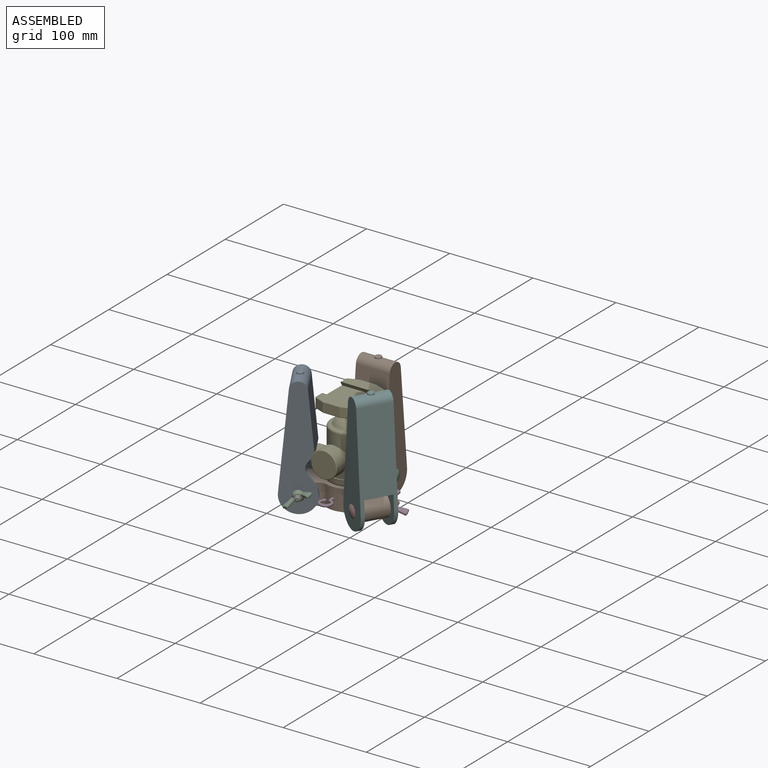
[diagram: assembled view]
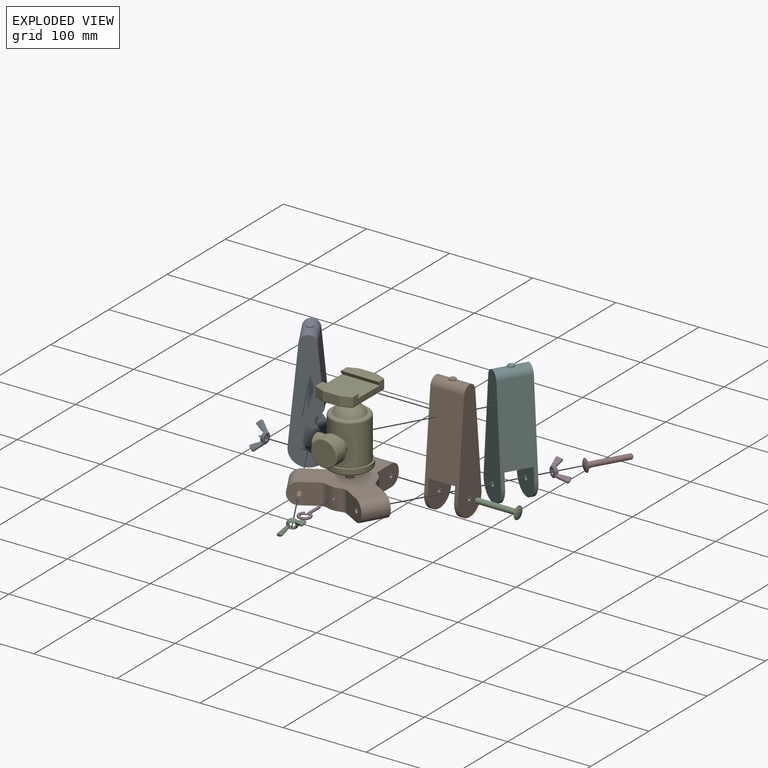
[diagram: exploded view]
GUIDED TOUR — MATED ASSEMBLY WITH SUBASSEMBLIES (Onshape document 450d4b0042331eae24bbd60c, AutoMate assembly 450d4b0042331eae24bbd60c_d984854fb3dad78ea3269862_093a6ce35e05ea192c00fd4e_default)

This assembly has 21 component occurrences arranged in 12 top-level units: 9 individual components plus 3 subassemblies (S0, S1, S2). The tour has two levels: first the top level, where each subassembly is treated as one rigid unit; then each subassembly is toured internally in its own section (nesting deeper than one subassembly level is flattened into its subassembly's section).

Components are labeled P0..P20 across the whole record; subassembly units are labeled S0..S2. A mate is a constraint between two units; its type names the relative motion it leaves free:
  FASTENED — locks the two components together rigidly (no relative motion),
  REVOLUTE — leaves rotation about the listed axis free (a hinge).
Axis/direction vectors are unit vectors and 'through' points are millimeter coordinates, both in the assembly's world frame.

TOP-LEVEL MATES (between units; each subassembly's internal mates are listed in its own section)
  1. FASTENED "Fastened 4": P10 <-> S0, direction (0.500, -0.866, 0.000) through (-52.70, -6.90, -12.70) mm
  2. REVOLUTE "Revolute 2": S1 <-> P16, axis (-1.000, 0.000, 0.000) through (15.88, 49.09, -12.70) mm
  3. FASTENED "Fastened 8": P3 <-> S1, direction (-1.000, 0.000, 0.000) through (20.38, 49.09, -12.70) mm
  4. REVOLUTE "Revolute 1": P7 <-> P16, axis (0.000, 0.000, -1.000) through (0.00, 0.00, 0.00) mm
  5. FASTENED "Fastened 2": P20 <-> P16, direction (0.000, 1.000, 0.000) through (0.00, -15.88, -12.70) mm
  6. REVOLUTE "Revolute 4": S0 <-> P16, axis (-0.500, 0.866, 0.000) through (-34.57, -38.29, -12.70) mm
  7. REVOLUTE "Revolute 3": S2 <-> P16, axis (-0.500, -0.866, 0.000) through (50.45, -10.79, -12.70) mm
  8. FASTENED "Fastened 6": P11 <-> S2, direction (0.500, 0.866, 0.000) through (32.32, -42.19, -12.70) mm
  9. FASTENED "Fastened 5": P6 <-> S2, direction (-0.500, -0.866, 0.000) through (52.70, -6.90, -12.70) mm
  10. FASTENED "Fastened 7": P12 <-> S1, direction (1.000, 0.000, 0.000) through (-20.37, 49.09, -12.70) mm
  11. FASTENED "Fastened 3": P19 <-> S0, direction (-0.500, 0.866, 0.000) through (-32.32, -42.19, -12.70) mm

TOP-LEVEL ASSEMBLY ORDER
  1. P16 — the base component [order heuristic]
  2. S0 — core [order heuristic]
  3. S2 — core [order heuristic]
  4. P3 — core [order heuristic]
  5. P6 — core [order heuristic]
  6. P10 — core [order heuristic]
  7. P11 — core [order heuristic]
  8. P19 — core [order heuristic]
  9. P7 [order verified]
  10. S1 [order verified]
  11. P12 [order verified]
  12. P20 [order verified]
Order-tag legend:
  [order verified] — this step's position reverses a verified removal order: the component was checked to insert without passing through the ones already placed.
  [order heuristic] — the first 8 components form the assembly's core: parts whose collision-free extraction could not be verified, listed in mate-graph order.

Of the 21 component occurrences, 4 carry the full construction recipe — the FeatureScript program that regenerates the part's solid from scratch; the rest are supplied as boundary geometry only. Each toured unit is shown spotlighted twice — assembled, then exploded with a leader line back to its socket (green = recipe-attached component, orange = geometry-only, blue = subassembly unit; the rest desaturated gray).
NOTE — document 2 of 2 of this assembly tour. The two overview renders and the header above are repeated from document 1; the component sections below continue where the previous document stopped.
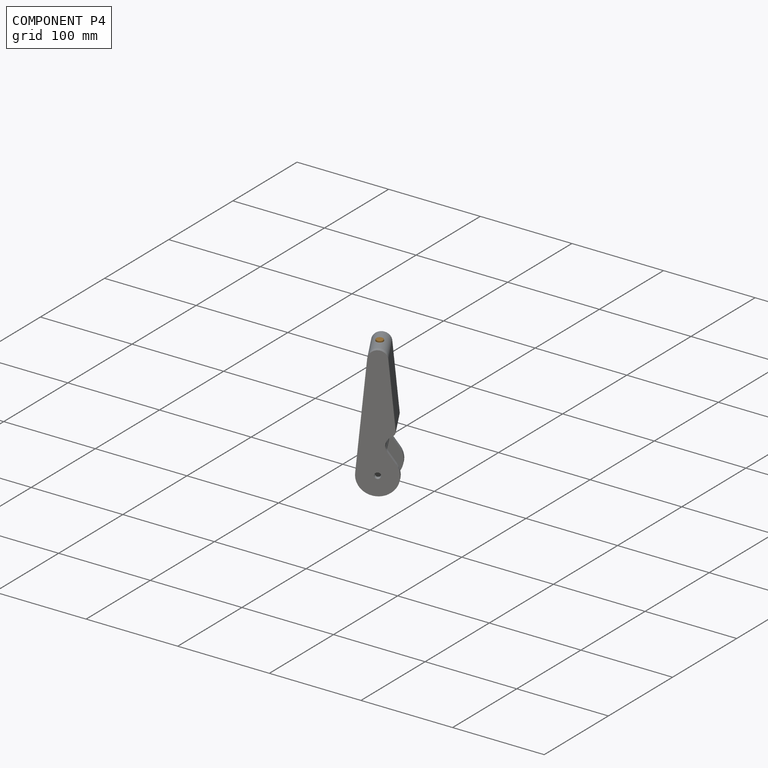
[diagram: component P4 — assembled]
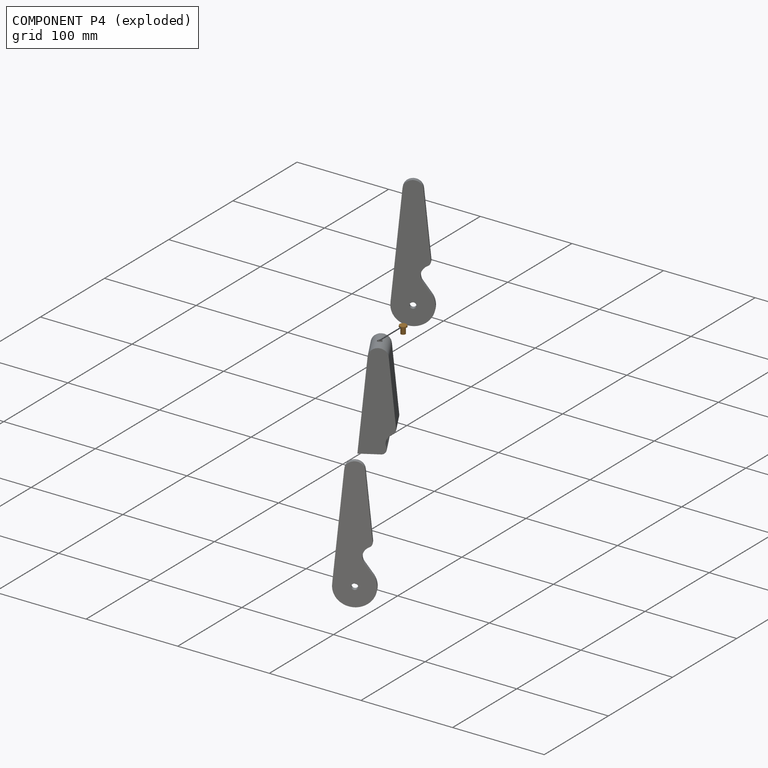
[diagram: component P4 — exploded]
COMPONENT P4 — geometry summary (no construction recipe available for this part):
  bounding box: 10.7 x 9.5 x 8.3 mm
  B-rep topology: 1 solid, 6 faces, 18 edges
  volume: 230 mm^3 (27% of its bounding box)
Held by: FASTENED mate "Fastened 3" to P1; FASTENED mate "Fastened 3" to P1.
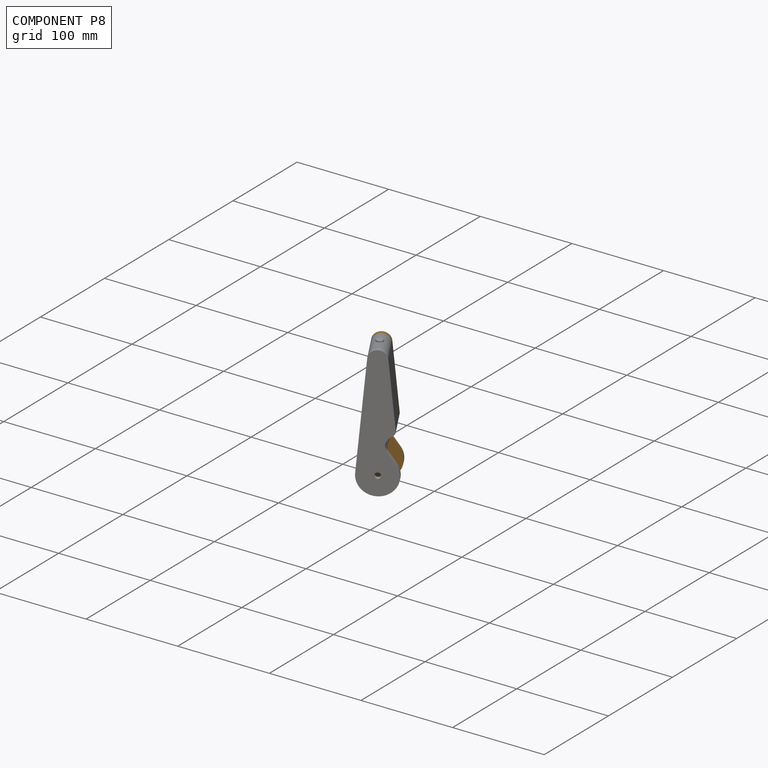
[diagram: component P8 — assembled]
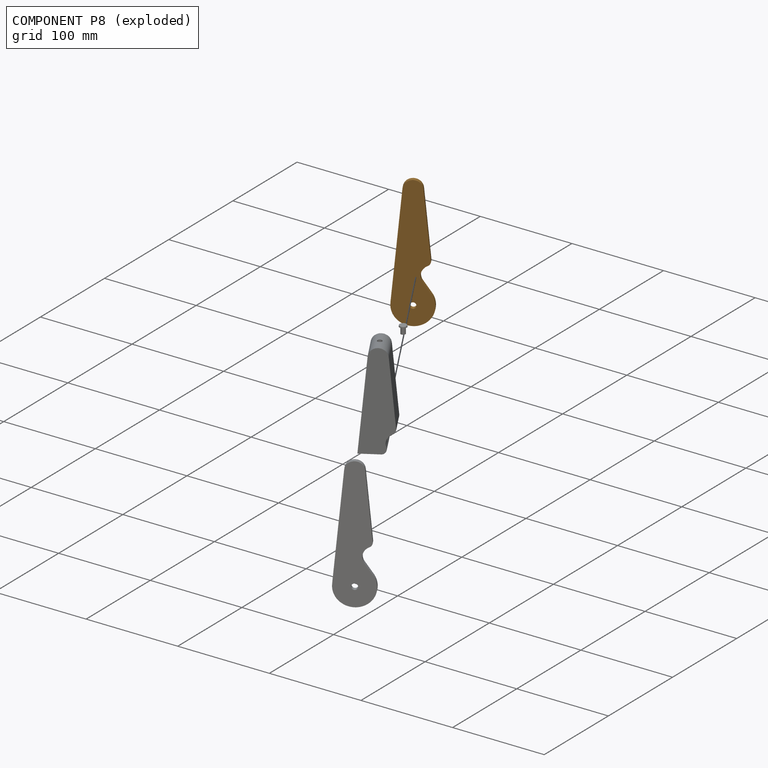
[diagram: component P8 — exploded]
COMPONENT P8 — geometry summary (no construction recipe available for this part):
  bounding box: 128.8 x 77.6 x 47.4 mm
  B-rep topology: 1 solid, 11 faces, 54 edges
  volume: 17788 mm^3 (4% of its bounding box)
Held by: FASTENED mate "Fastened 1" to P1; FASTENED mate "Fastened 1" to P1.
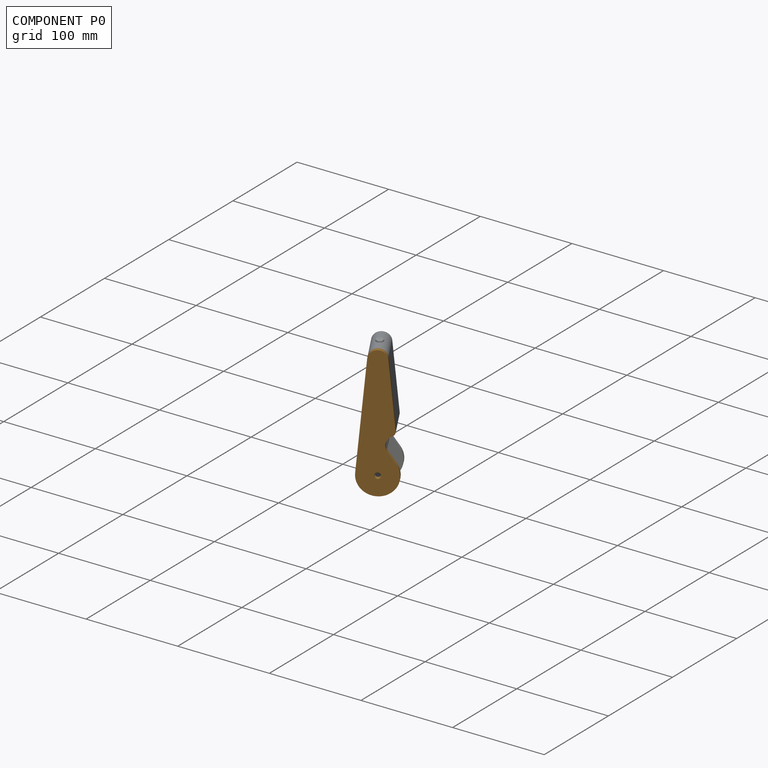
[diagram: component P0 — assembled]
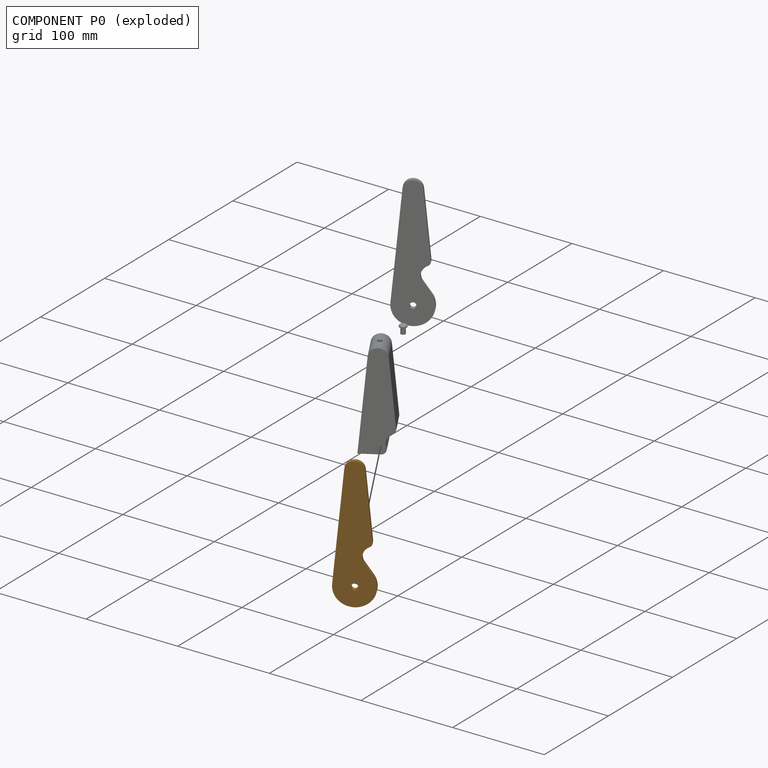
[diagram: component P0 — exploded]
COMPONENT P0 — geometry summary (no construction recipe available for this part):
  bounding box: 128.8 x 77.6 x 47.4 mm
  B-rep topology: 1 solid, 11 faces, 54 edges
  volume: 17788 mm^3 (4% of its bounding box)
Held by: FASTENED mate "Fastened 2" to P1; FASTENED mate "Fastened 2" to P1.
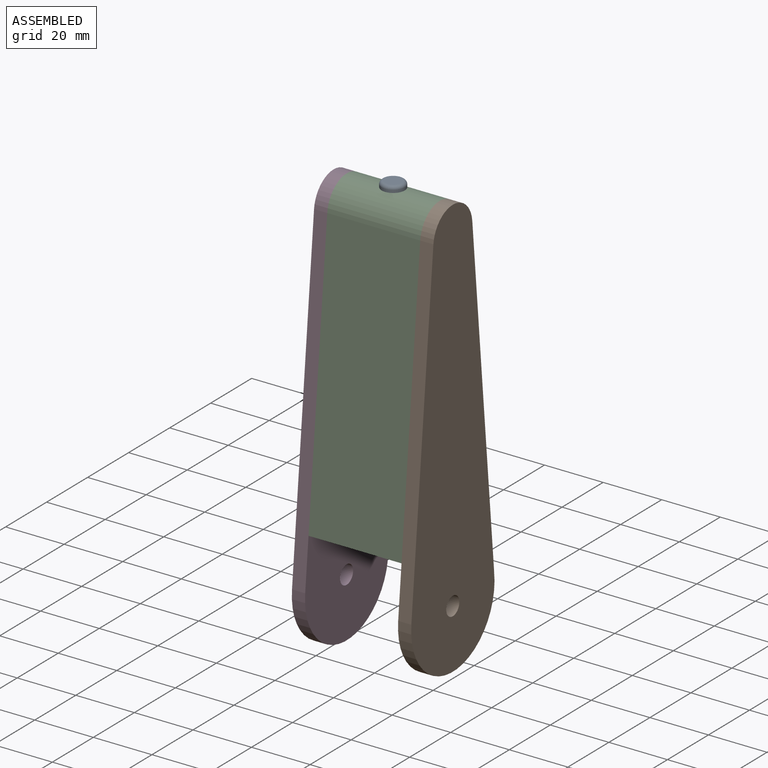
[diagram: subassembly S1 — assembled view]
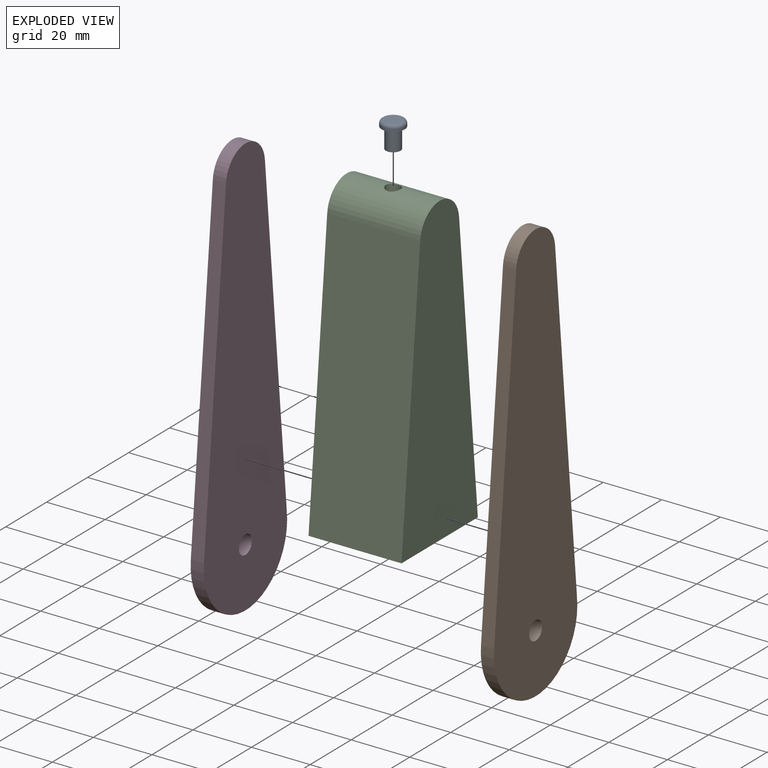
[diagram: subassembly S1 — exploded view]
SUBASSEMBLY S1 TOUR — 4 components, shown here in isolation at its own camera.

INTERNAL MATES
  1. FASTENED "Fastened 2": P5 <-> P13, direction (-1.000, 0.000, 0.000) through (15.88, 49.09, 101.60) mm
  2. FASTENED "Fastened 1": P14 <-> P13, direction (1.000, 0.000, 0.000) through (-15.87, 49.09, 101.60) mm
  3. FASTENED "Fastened 3": P2 <-> P13, direction (0.000, 0.000, -1.000) through (0.00, 49.09, 104.14) mm
  4. FASTENED "Fastened 1": P14 <-> P13, direction (1.000, 0.000, 0.000) through (-15.87, 49.09, 101.60) mm
  5. FASTENED "Fastened 3": P2 <-> P13, direction (0.000, 0.000, -1.000) through (0.00, 49.09, 104.14) mm
  6. FASTENED "Fastened 2": P5 <-> P13, direction (-1.000, 0.000, 0.000) through (15.88, 49.09, 101.60) mm

ASSEMBLY ORDER (within the subassembly)
  1. P13 — the base component [order verified]
  2. P2 [order verified]
  3. P5 [order verified]
  4. P14 [order verified]
Order-tag legend:
  [order verified] — this step's position reverses a verified removal order: the component was checked to insert without passing through the ones already placed.
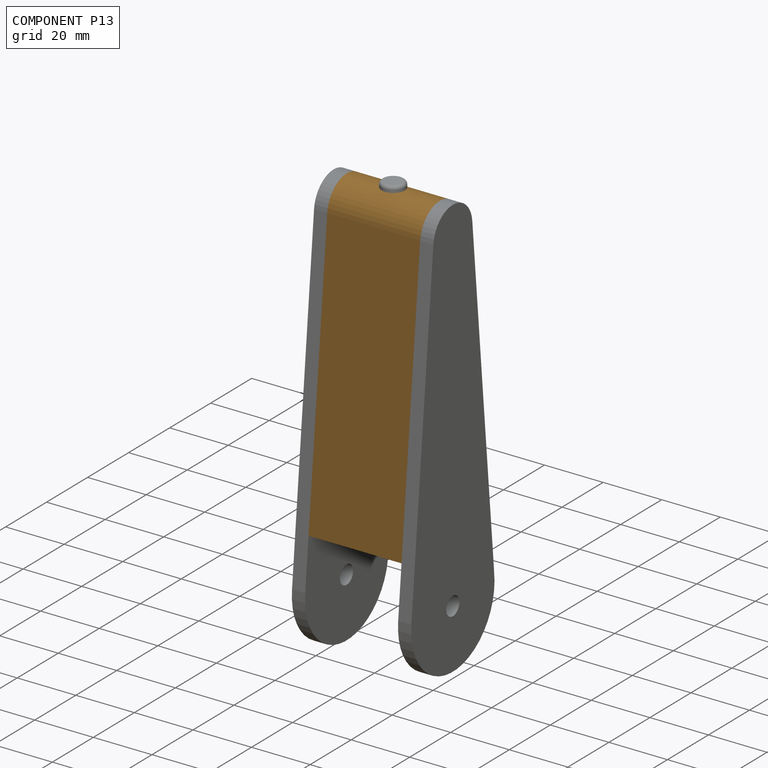
[diagram: component P13 — assembled]
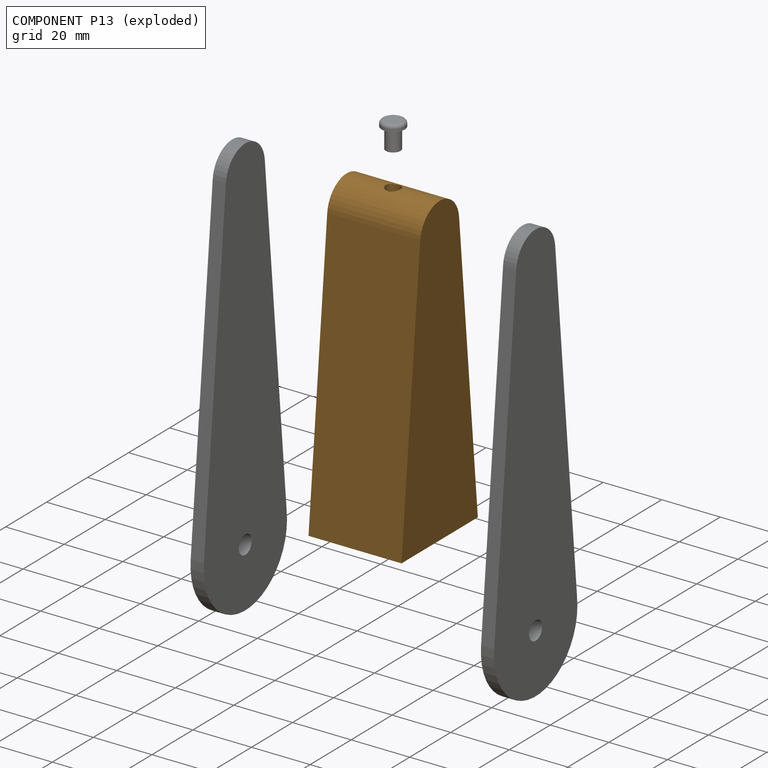
[diagram: component P13 — exploded]
COMPONENT P13 — geometry summary (no construction recipe available for this part):
  bounding box: 101.3 x 73.3 x 31.8 mm
  B-rep topology: 1 solid, 8 faces, 32 edges
  volume: 89587 mm^3 (38% of its bounding box)
  symmetry: mirror-symmetric across its x mid-plane
Held by: FASTENED mate "Fastened 2" to P5; FASTENED mate "Fastened 1" to P14; FASTENED mate "Fastened 3" to P2; FASTENED mate "Fastened 1" to P14; FASTENED mate "Fastened 3" to P2; FASTENED mate "Fastened 2" to P5.
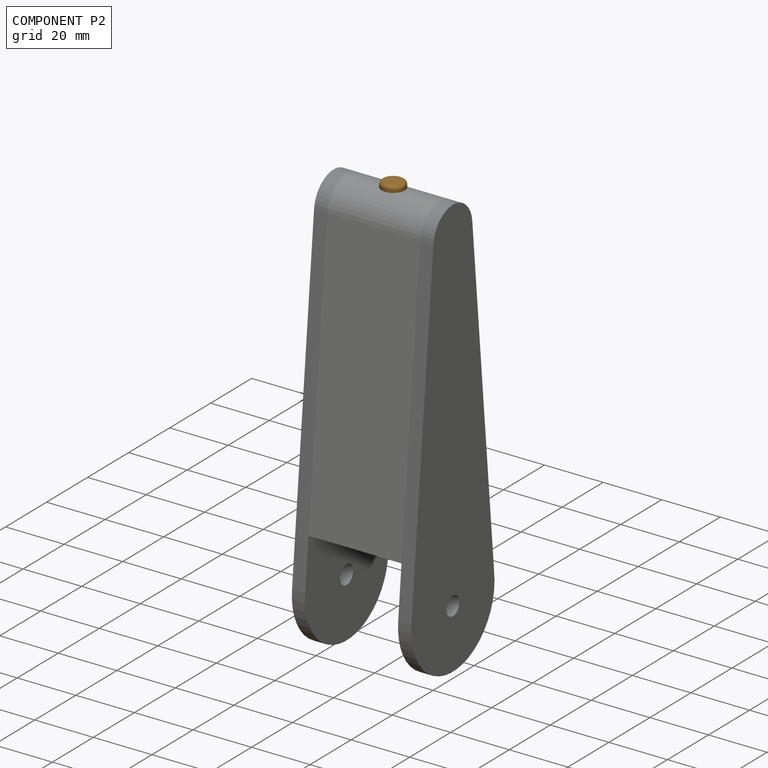
[diagram: component P2 — assembled]
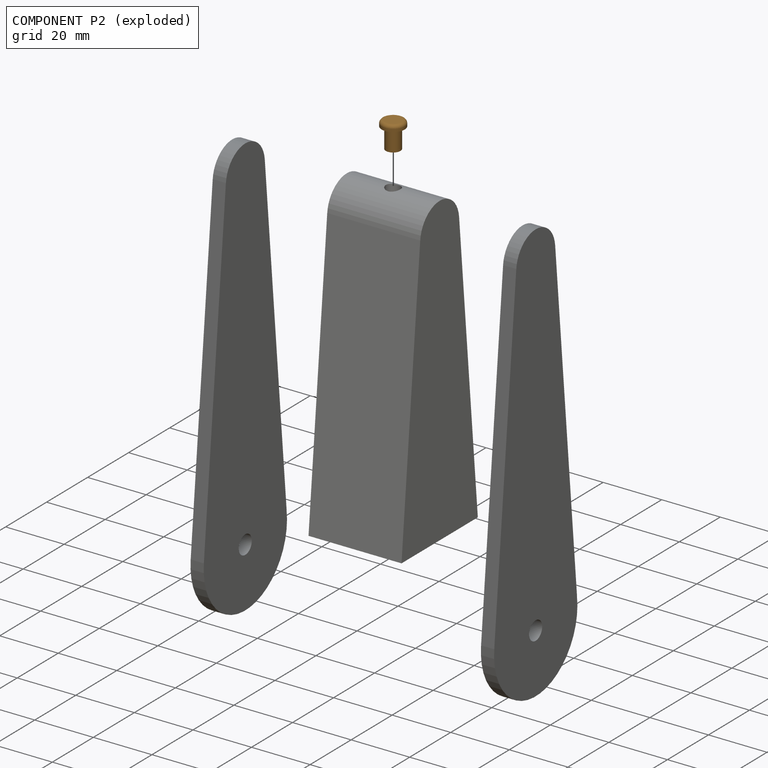
[diagram: component P2 — exploded]
COMPONENT P2 — geometry summary (no construction recipe available for this part):
  bounding box: 10.7 x 9.5 x 8.3 mm
  B-rep topology: 1 solid, 6 faces, 18 edges
  volume: 230 mm^3 (27% of its bounding box)
Held by: FASTENED mate "Fastened 3" to P13; FASTENED mate "Fastened 3" to P13.
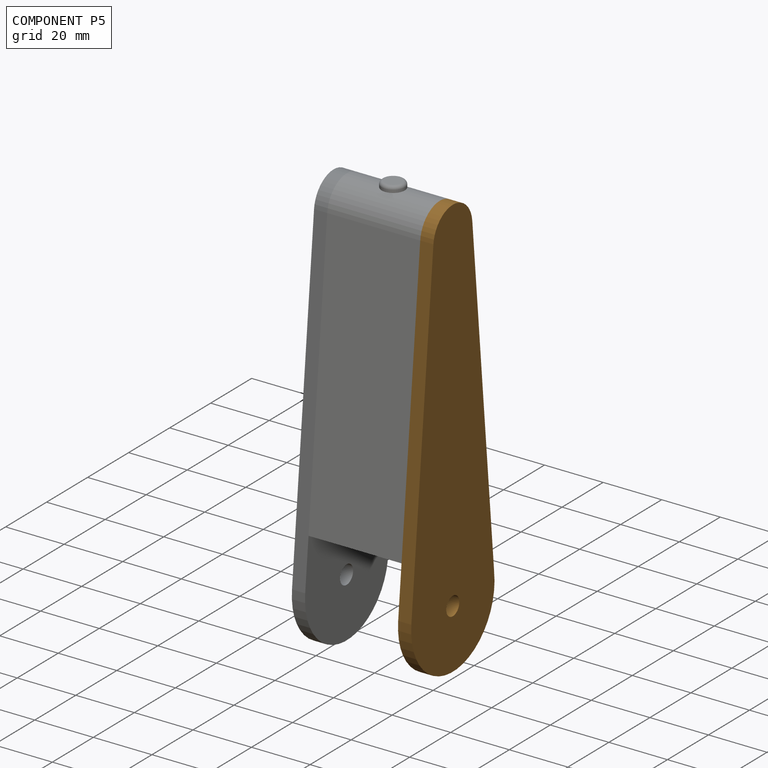
[diagram: component P5 — assembled]
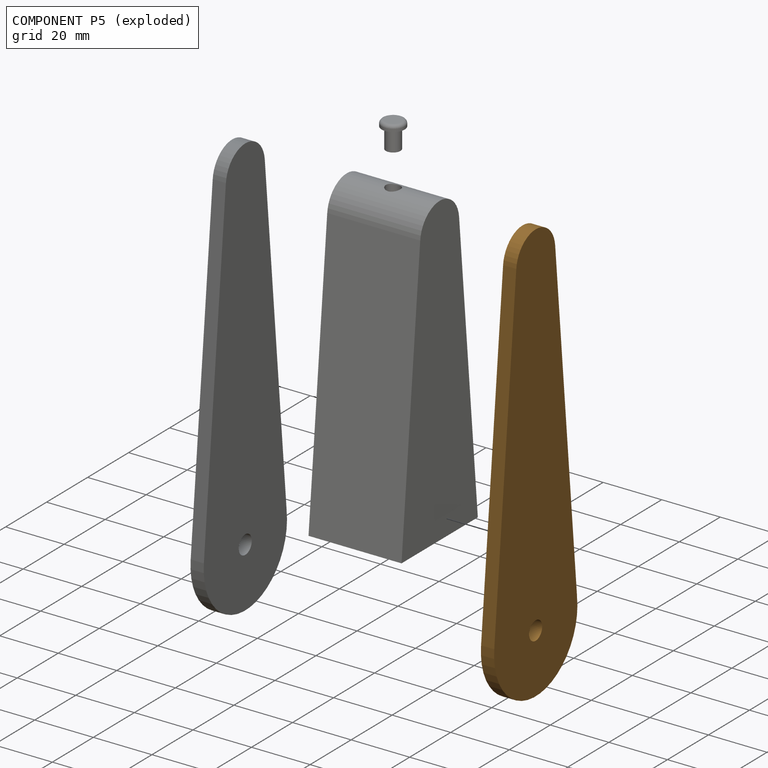
[diagram: component P5 — exploded]
COMPONENT P5 — geometry summary (no construction recipe available for this part):
  bounding box: 128.8 x 87.0 x 4.5 mm
  B-rep topology: 1 solid, 8 faces, 36 edges
  volume: 18837 mm^3 (37% of its bounding box)
  symmetry: mirror-symmetric across its x mid-plane
Held by: FASTENED mate "Fastened 2" to P13; FASTENED mate "Fastened 2" to P13.
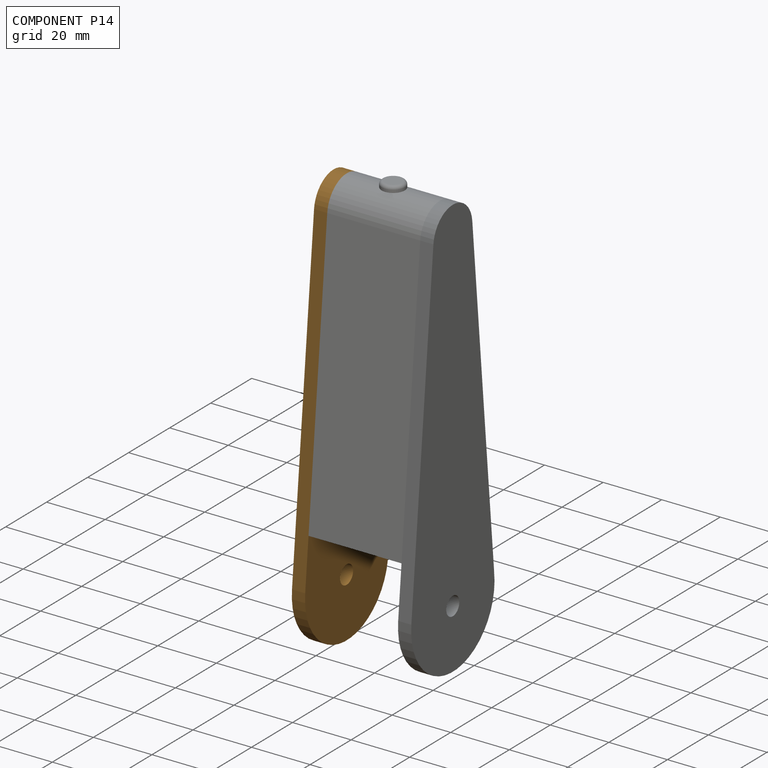
[diagram: component P14 — assembled]
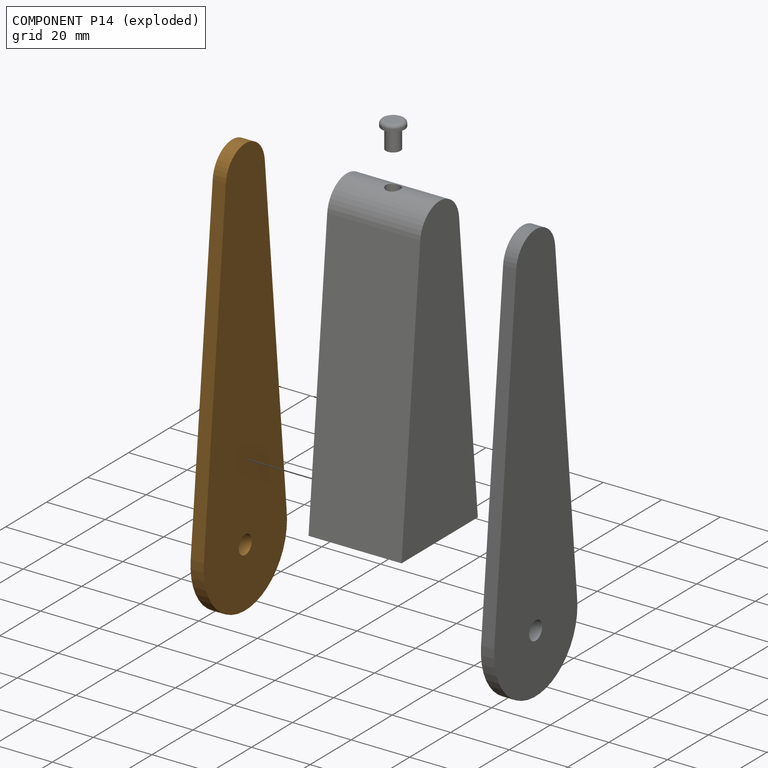
[diagram: component P14 — exploded]
COMPONENT P14 — geometry summary (no construction recipe available for this part):
  bounding box: 128.8 x 87.0 x 4.5 mm
  B-rep topology: 1 solid, 8 faces, 36 edges
  volume: 18837 mm^3 (37% of its bounding box)
  symmetry: mirror-symmetric across its x mid-plane
Held by: FASTENED mate "Fastened 1" to P13; FASTENED mate "Fastened 1" to P13.
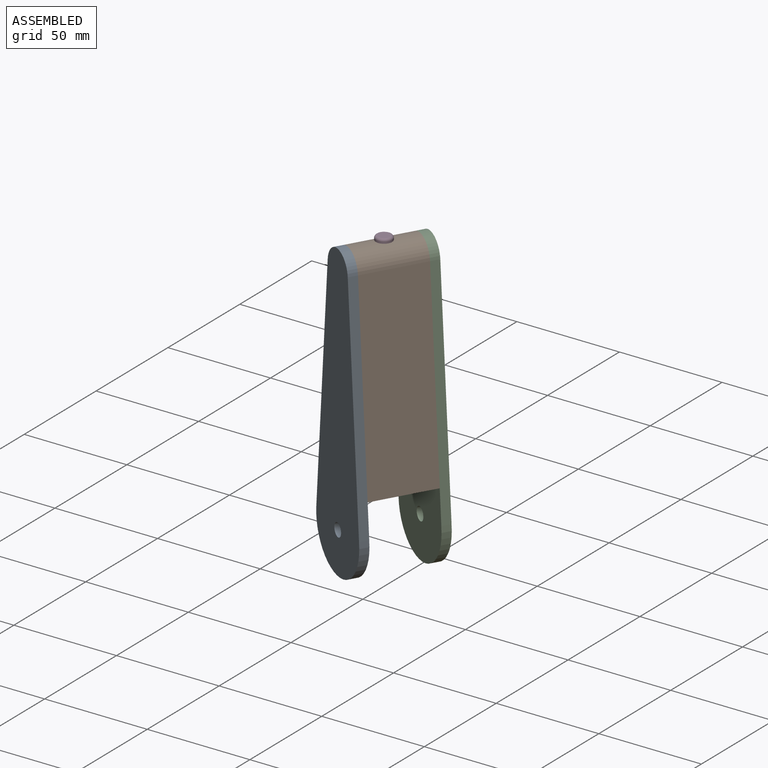
[diagram: subassembly S2 — assembled view]
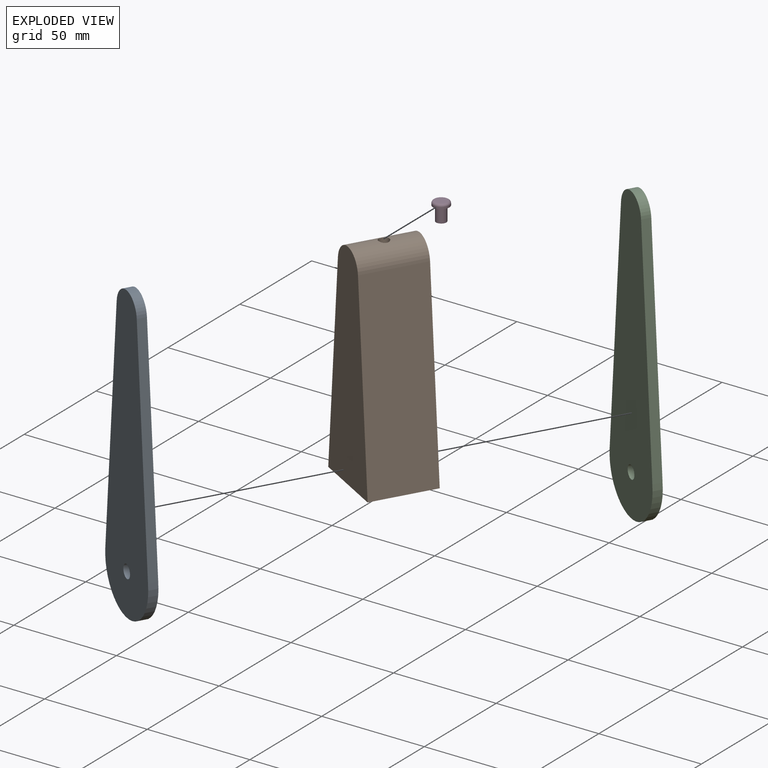
[diagram: subassembly S2 — exploded view]
SUBASSEMBLY S2 TOUR — 4 components, shown here in isolation at its own camera.

INTERNAL MATES
  1. FASTENED "Fastened 2": P9 <-> P15, direction (0.500, 0.866, 0.000) through (34.57, -38.29, 101.60) mm
  2. FASTENED "Fastened 1": P17 <-> P15, direction (-0.500, -0.866, 0.000) through (50.45, -10.80, 101.60) mm
  3. FASTENED "Fastened 3": P18 <-> P15, direction (0.000, 0.000, -1.000) through (42.51, -24.54, 104.14) mm
  4. FASTENED "Fastened 3": P18 <-> P15, direction (0.000, 0.000, -1.000) through (42.51, -24.54, 104.14) mm
  5. FASTENED "Fastened 2": P9 <-> P15, direction (0.500, 0.866, 0.000) through (34.57, -38.29, 101.60) mm
  6. FASTENED "Fastened 1": P17 <-> P15, direction (-0.500, -0.866, 0.000) through (50.45, -10.80, 101.60) mm

ASSEMBLY ORDER (within the subassembly)
  1. P15 — the base component [order verified]
  2. P18 [order verified]
  3. P9 [order verified]
  4. P17 [order verified]
Order-tag legend:
  [order verified] — this step's position reverses a verified removal order: the component was checked to insert without passing through the ones already placed.
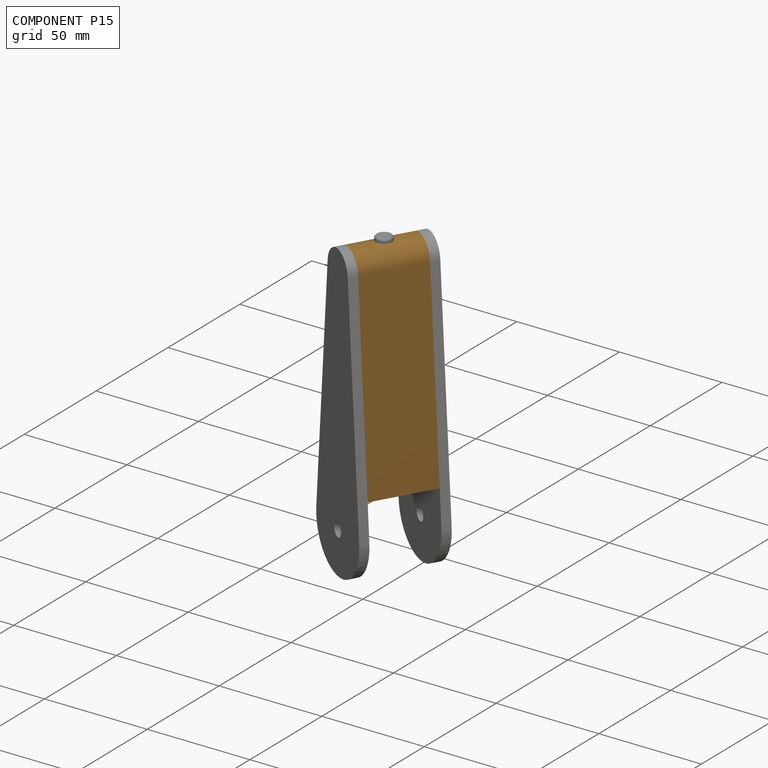
[diagram: component P15 — assembled]
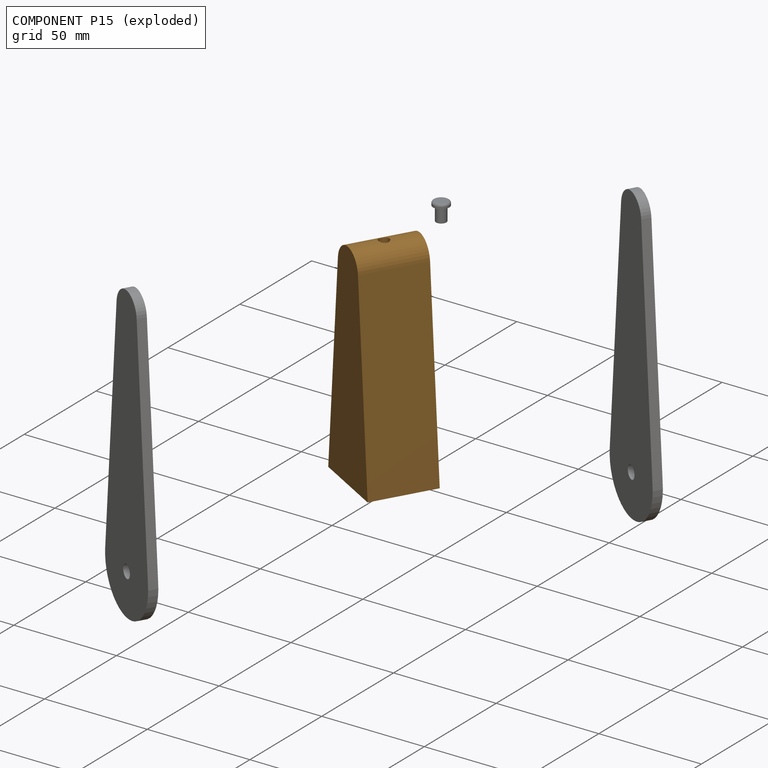
[diagram: component P15 — exploded]
COMPONENT P15 — geometry summary (no construction recipe available for this part):
  bounding box: 101.3 x 73.3 x 31.8 mm
  B-rep topology: 1 solid, 8 faces, 32 edges
  volume: 89587 mm^3 (38% of its bounding box)
  symmetry: mirror-symmetric across its x mid-plane
Held by: FASTENED mate "Fastened 2" to P9; FASTENED mate "Fastened 1" to P17; FASTENED mate "Fastened 3" to P18; FASTENED mate "Fastened 3" to P18; FASTENED mate "Fastened 2" to P9; FASTENED mate "Fastened 1" to P17.
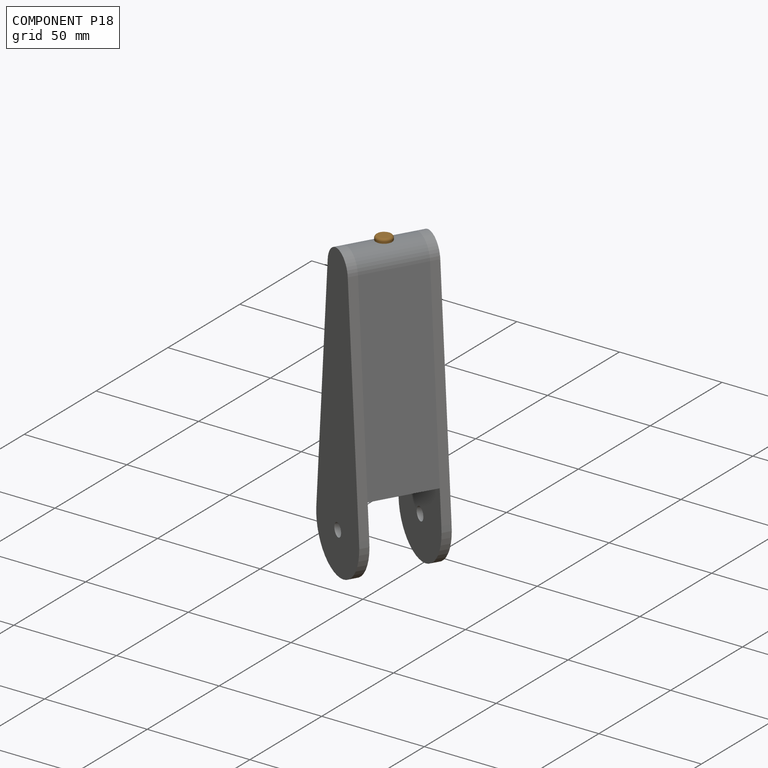
[diagram: component P18 — assembled]
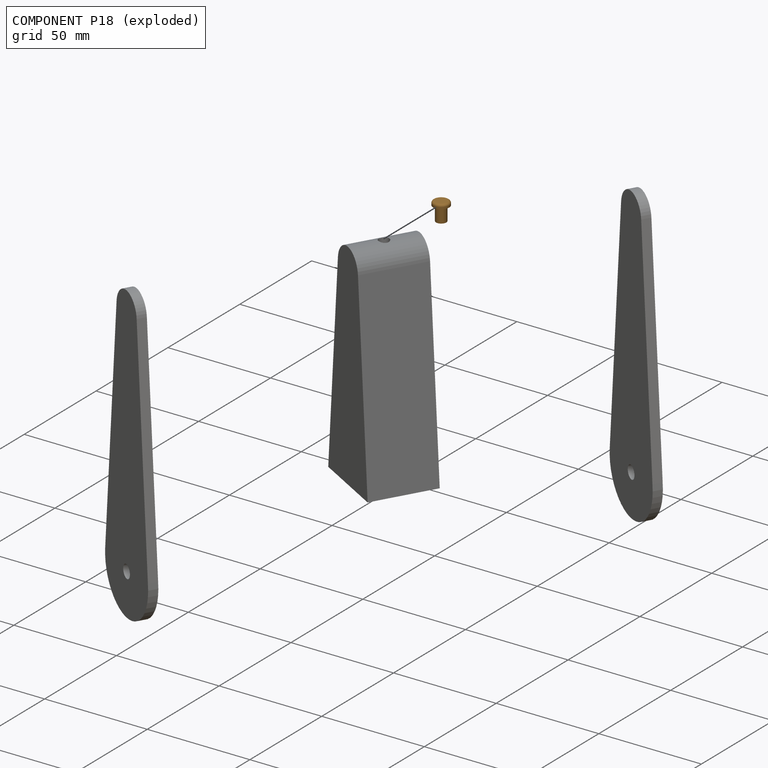
[diagram: component P18 — exploded]
COMPONENT P18 — geometry summary (no construction recipe available for this part):
  bounding box: 10.7 x 9.5 x 8.3 mm
  B-rep topology: 1 solid, 6 faces, 18 edges
  volume: 230 mm^3 (27% of its bounding box)
Held by: FASTENED mate "Fastened 3" to P15; FASTENED mate "Fastened 3" to P15.
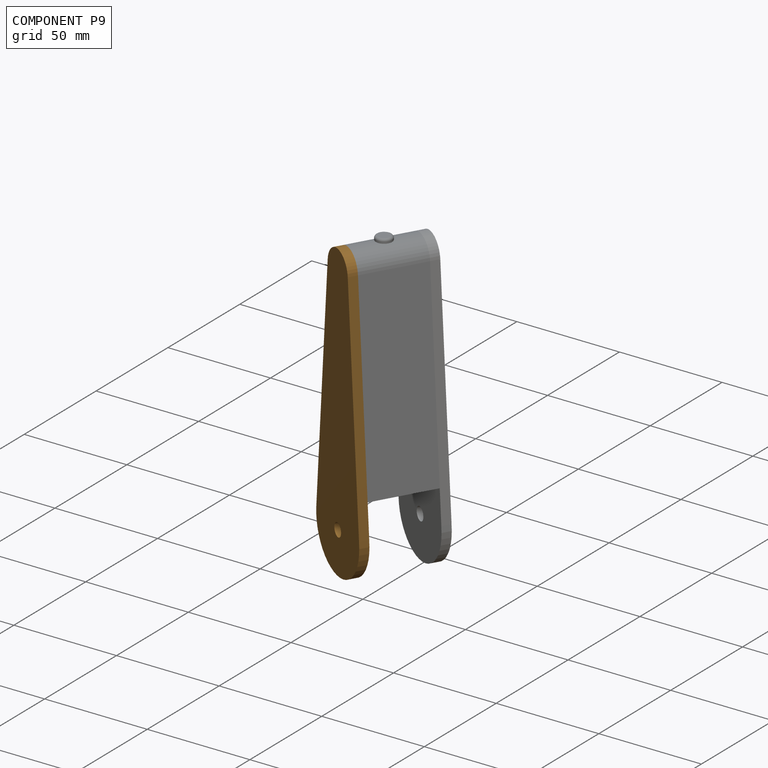
[diagram: component P9 — assembled]
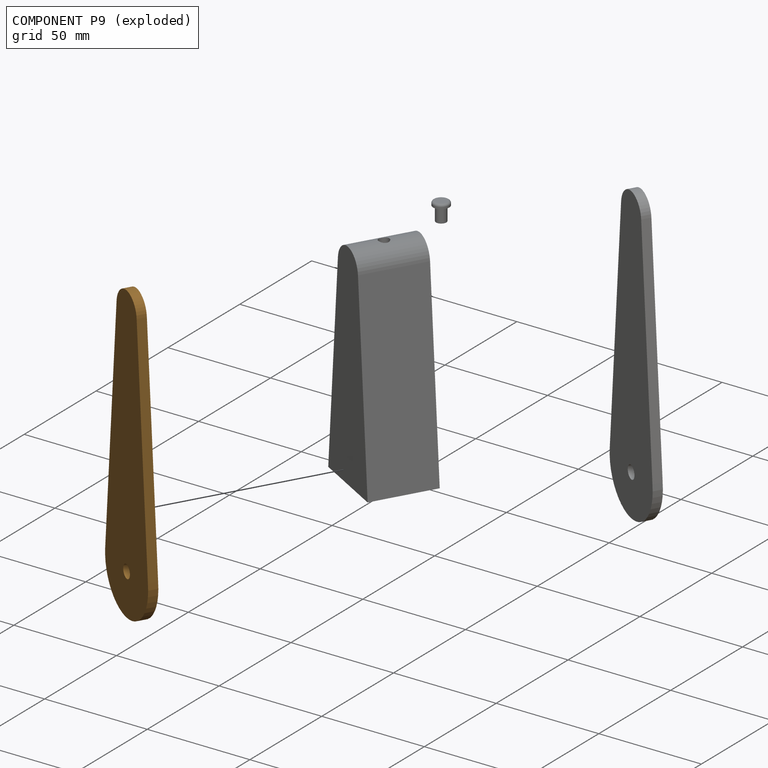
[diagram: component P9 — exploded]
COMPONENT P9 — geometry summary (no construction recipe available for this part):
  bounding box: 128.8 x 87.0 x 4.5 mm
  B-rep topology: 1 solid, 8 faces, 36 edges
  volume: 18837 mm^3 (37% of its bounding box)
  symmetry: mirror-symmetric across its x mid-plane
Held by: FASTENED mate "Fastened 2" to P15; FASTENED mate "Fastened 2" to P15.
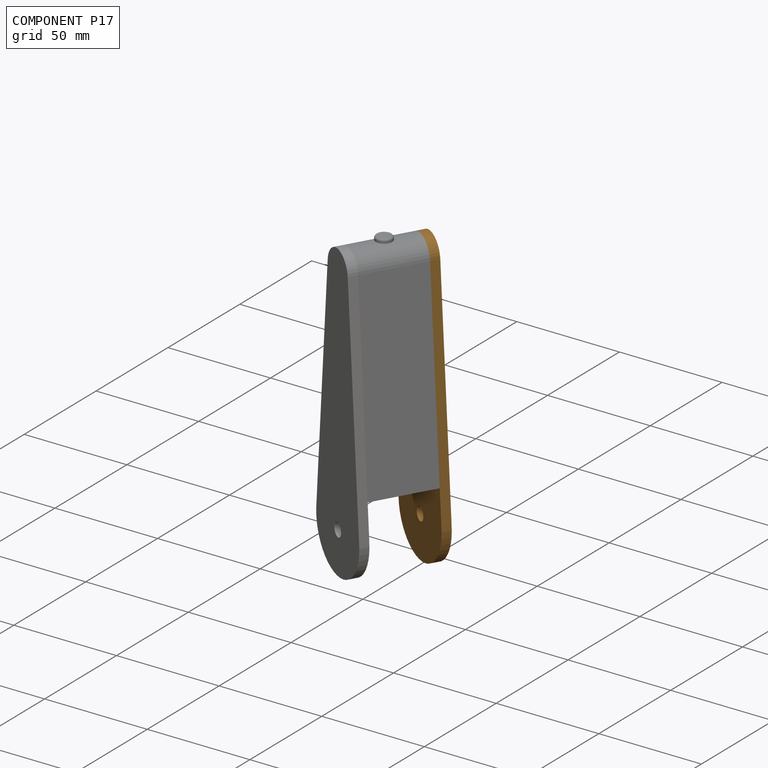
[diagram: component P17 — assembled]
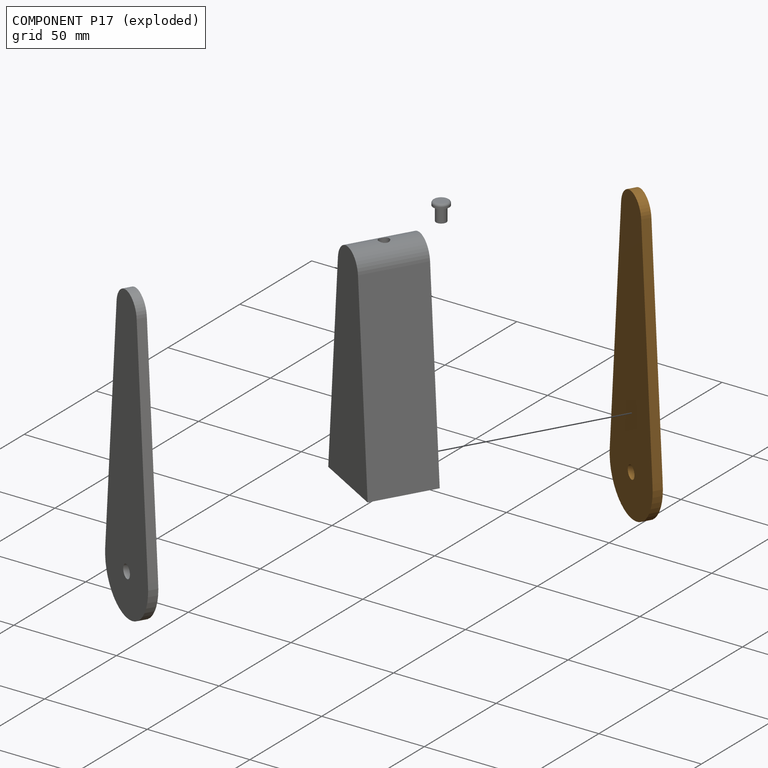
[diagram: component P17 — exploded]
COMPONENT P17 — geometry summary (no construction recipe available for this part):
  bounding box: 128.8 x 87.0 x 4.5 mm
  B-rep topology: 1 solid, 8 faces, 36 edges
  volume: 18837 mm^3 (37% of its bounding box)
  symmetry: mirror-symmetric across its x mid-plane
Held by: FASTENED mate "Fastened 1" to P15; FASTENED mate "Fastened 1" to P15.
PROVENANCE & LICENSES
Assembly (occurrences, transforms, mates, per-part STEP geometry): AutoMate dataset, Zenodo record 7776208, CC0.
Construction recipes: CADFS (HuggingFace VladPyatov/CADFS, CC-BY-4.0, layered over the ABC dataset), FeatureScript reconstruction programs keyed by ABC model id.
Join: ABC meta listings map ABC model id -> Onshape documentId; within a shared document, parts are matched by geometric signature (bounding-box dims + volume at 0.1% relative tolerance, exact B-rep face/solid counts).
Verification: 4 of this assembly's 21 components carry a recipe attachment, and every attachment is mesh-verified: the CADFS STEP and the AutoMate member STEP were compared as meshes in their shared local frame (symmetric sampled-point-to-mesh distance); worst across the 4 attachments: below the mesh-comparison resolution (tessellation chordal tolerance ~0.206 mm) on a 138 mm part.
Renders: orthographic iso camera (az 35 / el 25); the floor grid conveys scale (grid pitch printed in each image; no ruler). In the exploded view each component is displaced by its stored offset vector: the offsets alone carry the explosion direction (mate normal/axis signs are not orientation cues and do not encode it), and separation distances are assigned per mate-chain, not proportionally to assembly-order depth.
